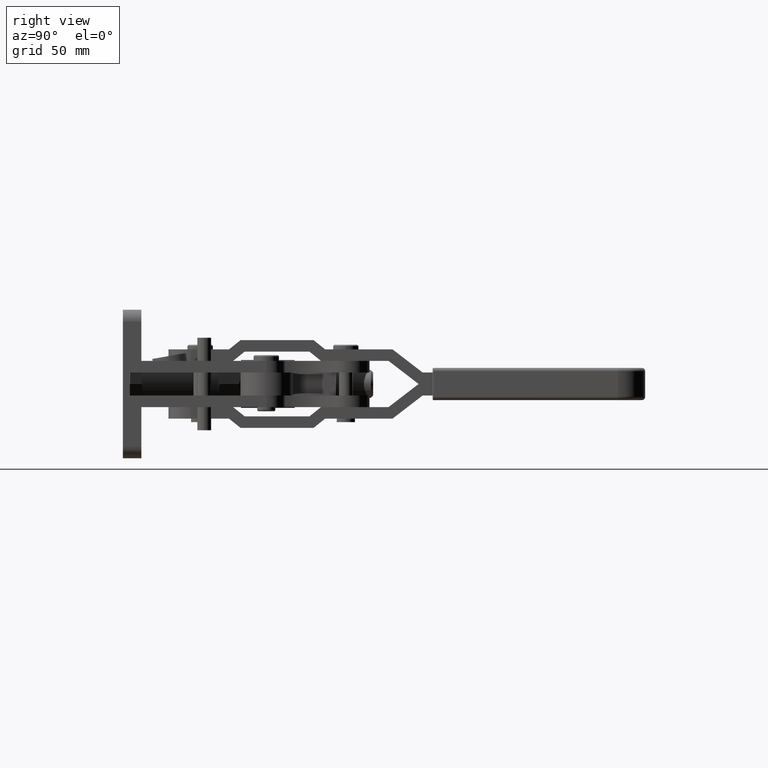
[diagram: clean part render]
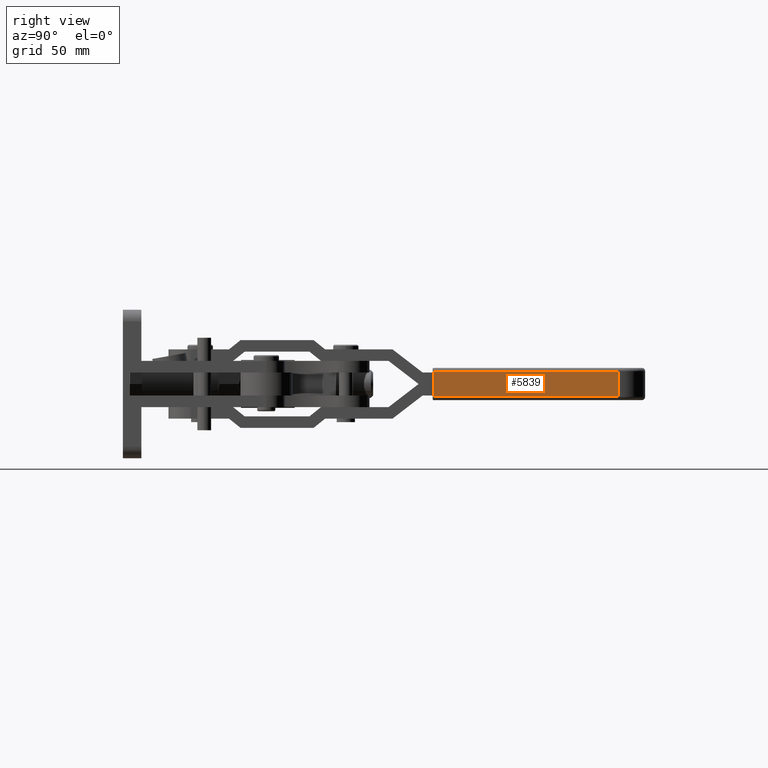
[diagram: same view with one face highlighted and labeled with its STEP entity id]
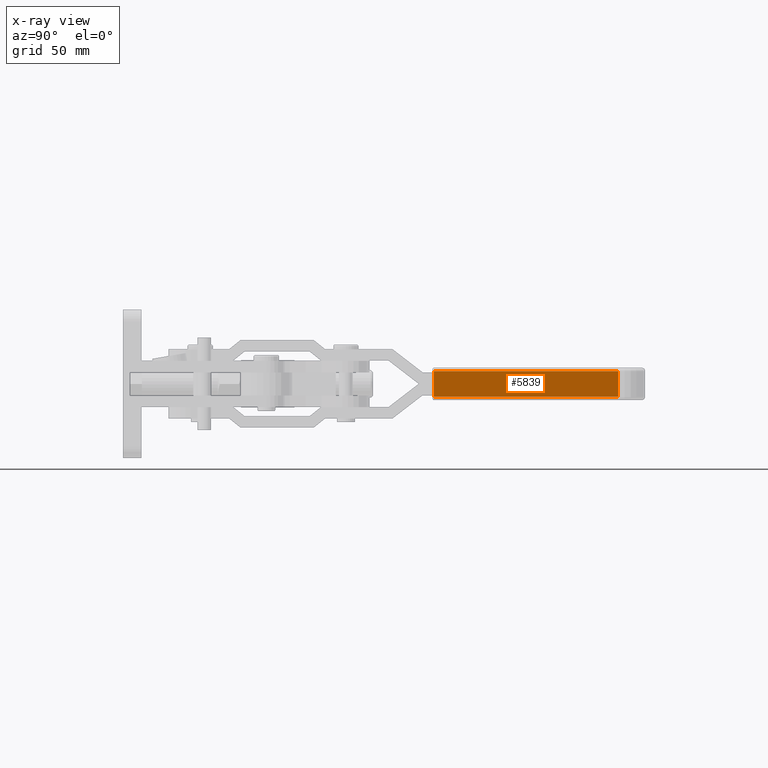
[diagram: x-ray of the same camera — body ghosted, the highlighted face saturated]
A machine part, right view. The second image highlights one B-rep face of the part: STEP entity #5839.
The next image is the same camera in x-ray: the body ghosted, the highlighted face saturated — about 0% of this face is hidden behind the body in this view.
In plain terms, the highlighted planar face has unit normal (-1, 0, 0).
Its self-contained STEP definition (entity closure, byte-faithful):
#29 = LINE ( 'NONE', #6233, #6650 ) ;
#1118 = CARTESIAN_POINT ( 'NONE',  ( -27.24999999999787200, 211.2500000000003400, -10.50000000000006400 ) ) ;
#1208 = DIRECTION ( 'NONE',  ( 0.0000000000000000000, 1.000000000000000000, 0.0000000000000000000 ) ) ;
#1415 = VECTOR ( 'NONE', #4492, 1000.000000000000000 ) ;
#1501 = ORIENTED_EDGE ( 'NONE', *, *, #5735, .T. ) ;
#1676 = LINE ( 'NONE', #4501, #1415 ) ;
#1793 = LINE ( 'NONE', #1118, #6140 ) ;
#3311 = ORIENTED_EDGE ( 'NONE', *, *, #4636, .F. ) ;
#3333 = CARTESIAN_POINT ( 'NONE',  ( -27.24999999999787200, 211.2500000000003400, -10.50000000000006400 ) ) ;
#3918 = LINE ( 'NONE', #10673, #10503 ) ;
#4492 = DIRECTION ( 'NONE',  ( 0.0000000000000000000, 0.0000000000000000000, -1.000000000000000000 ) ) ;
#4501 = CARTESIAN_POINT ( 'NONE',  ( -27.24999999999787200, 131.5000000000003400, -6.418476861114186200E-014 ) ) ;
#4625 = VERTEX_POINT ( 'NONE', #6309 ) ;
#4636 = EDGE_CURVE ( 'NONE', #4625, #6883, #29, .T. ) ;
#5121 = VERTEX_POINT ( 'NONE', #10944 ) ;
#5735 = EDGE_CURVE ( 'NONE', #4625, #6071, #3918, .T. ) ;
#5839 = ADVANCED_FACE ( 'NONE', ( #7428 ), #9828, .F. ) ;
#6071 = VERTEX_POINT ( 'NONE', #8194 ) ;
#6140 = VECTOR ( 'NONE', #1208, 1000.000000000000000 ) ;
#6231 = DIRECTION ( 'NONE',  ( -0.0000000000000000000, -0.0000000000000000000, -1.000000000000000000 ) ) ;
#6233 = CARTESIAN_POINT ( 'NONE',  ( -27.24999999999787200, 211.2500000000003400, -6.418476861114186200E-014 ) ) ;
#6309 = CARTESIAN_POINT ( 'NONE',  ( -27.24999999999787200, 211.2500000000003400, 0.4999999999999353900 ) ) ;
#6650 = VECTOR ( 'NONE', #6231, 1000.000000000000000 ) ;
#6667 = EDGE_CURVE ( 'NONE', #6071, #5121, #1676, .T. ) ;
#6883 = VERTEX_POINT ( 'NONE', #3333 ) ;
#7245 = EDGE_CURVE ( 'NONE', #5121, #6883, #1793, .T. ) ;
#7400 = ORIENTED_EDGE ( 'NONE', *, *, #6667, .T. ) ;
#7428 = FACE_OUTER_BOUND ( 'NONE', #8979, .T. ) ;
#8194 = CARTESIAN_POINT ( 'NONE',  ( -27.24999999999787200, 131.5000000000003400, 0.4999999999999353900 ) ) ;
#8979 = EDGE_LOOP ( 'NONE', ( #1501, #7400, #10473, #3311 ) ) ;
#8984 = AXIS2_PLACEMENT_3D ( 'NONE', #9654, #9646, #9632 ) ;
#9632 = DIRECTION ( 'NONE',  ( 0.0000000000000000000, 0.0000000000000000000, 1.000000000000000000 ) ) ;
#9646 = DIRECTION ( 'NONE',  ( -1.000000000000000000, 0.0000000000000000000, 0.0000000000000000000 ) ) ;
#9654 = CARTESIAN_POINT ( 'NONE',  ( -27.24999999999787200, 131.0000000000003400, -6.418476861114186200E-014 ) ) ;
#9828 = PLANE ( 'NONE',  #8984 ) ;
#10473 = ORIENTED_EDGE ( 'NONE', *, *, #7245, .T. ) ;
#10503 = VECTOR ( 'NONE', #10577, 1000.000000000000000 ) ;
#10577 = DIRECTION ( 'NONE',  ( -0.0000000000000000000, -1.000000000000000000, -0.0000000000000000000 ) ) ;
#10673 = CARTESIAN_POINT ( 'NONE',  ( -27.24999999999787200, 131.0000000000003400, 0.4999999999999353900 ) ) ;
#10944 = CARTESIAN_POINT ( 'NONE',  ( -27.24999999999787200, 131.5000000000003400, -10.50000000000006400 ) ) ;